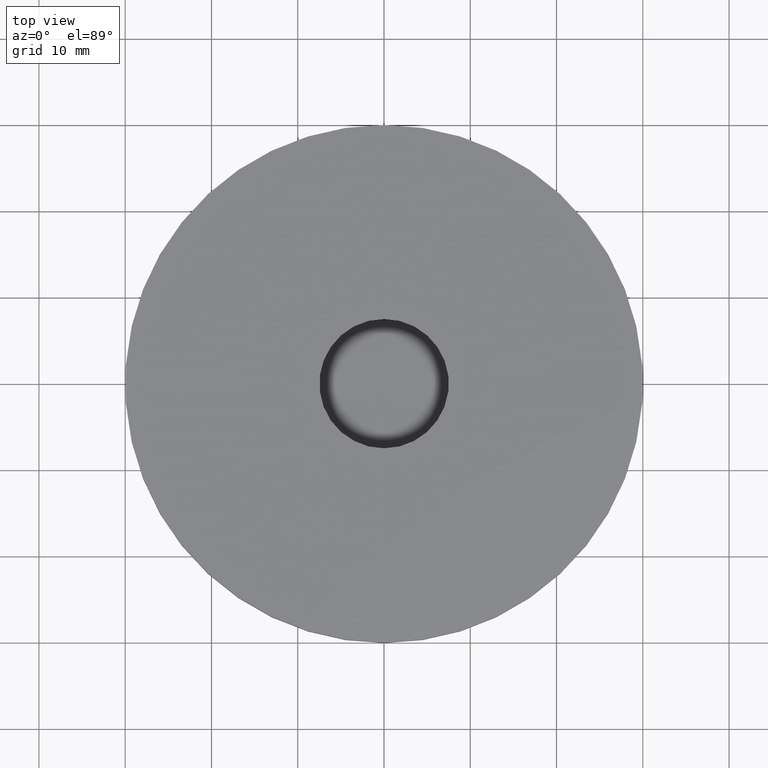
[diagram: clean part render]
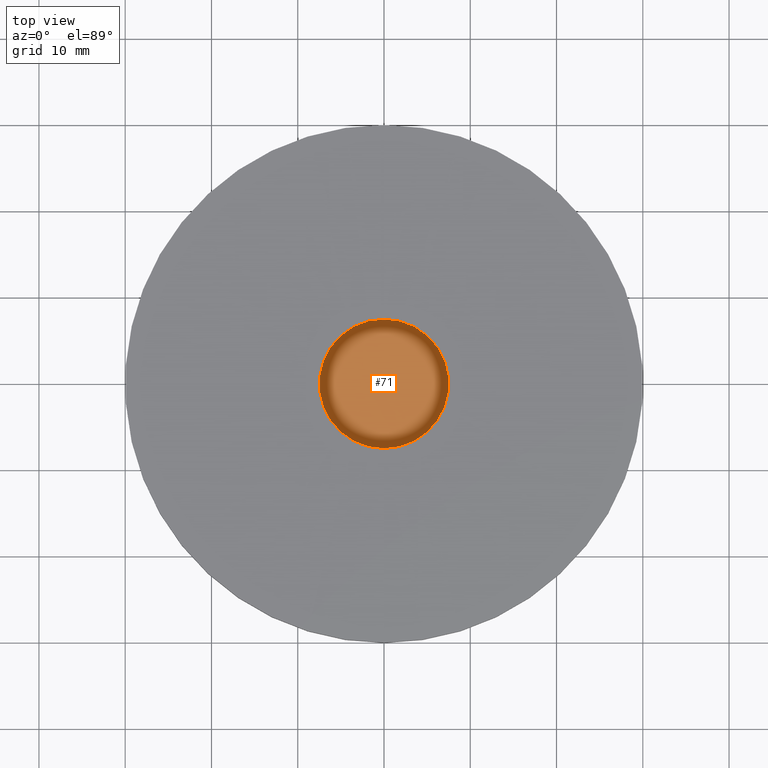
[diagram: same view with one face highlighted and labeled with its STEP entity id]
A machine part, top view. The second image highlights one B-rep face of the part: STEP entity #71.
In plain terms, the highlighted planar face has unit normal (0, 0, 1).
Its self-contained STEP definition (entity closure, byte-faithful):
#17=PLANE('',#103);
#22=FACE_OUTER_BOUND('',#28,.T.);
#28=EDGE_LOOP('',(#58));
#36=CIRCLE('',#102,7.5);
#40=VERTEX_POINT('',#138);
#45=EDGE_CURVE('',#40,#40,#36,.T.);
#58=ORIENTED_EDGE('',*,*,#45,.T.);
#71=ADVANCED_FACE('',(#22),#17,.T.);
#102=AXIS2_PLACEMENT_3D('',#139,#121,#122);
#103=AXIS2_PLACEMENT_3D('',#141,#124,#125);
#121=DIRECTION('center_axis',(0.,0.,1.));
#122=DIRECTION('ref_axis',(0.,-1.,0.));
#124=DIRECTION('center_axis',(0.,0.,1.));
#125=DIRECTION('ref_axis',(1.,0.,0.));
#138=CARTESIAN_POINT('',(0.,7.5,2.));
#139=CARTESIAN_POINT('Origin',(0.,1.224647E-16,2.));
#141=CARTESIAN_POINT('Origin',(-9.00340606574514,-9.00340606572676,2.));